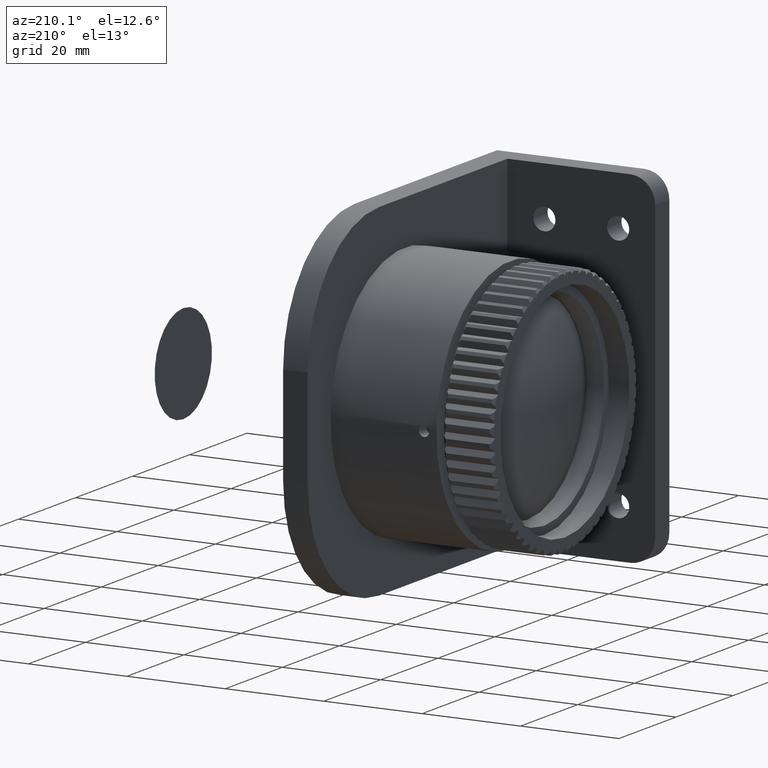
[diagram: clean part render]
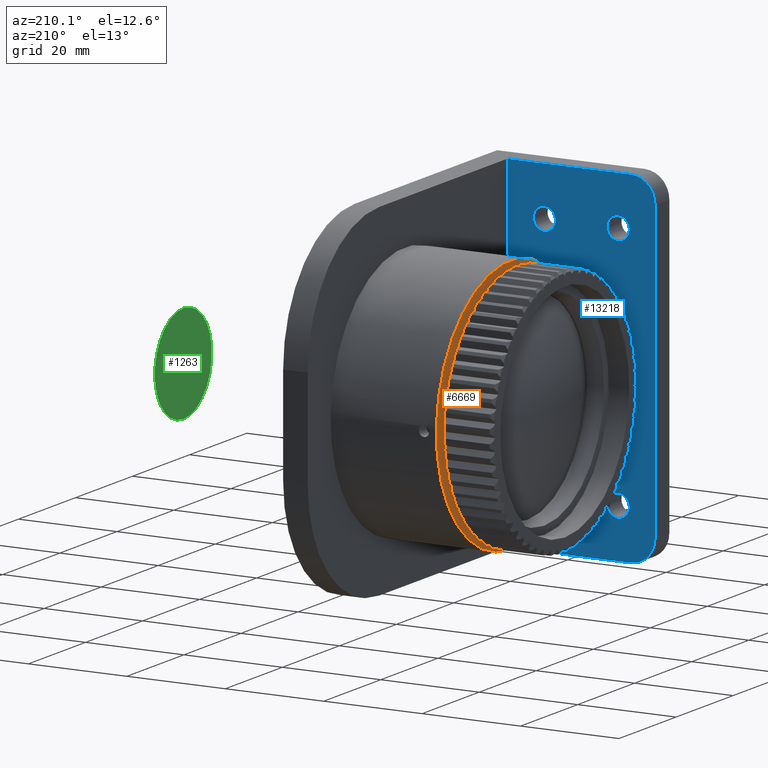
[diagram: same view with three faces highlighted in distinct colors, each labeled with its STEP entity id]
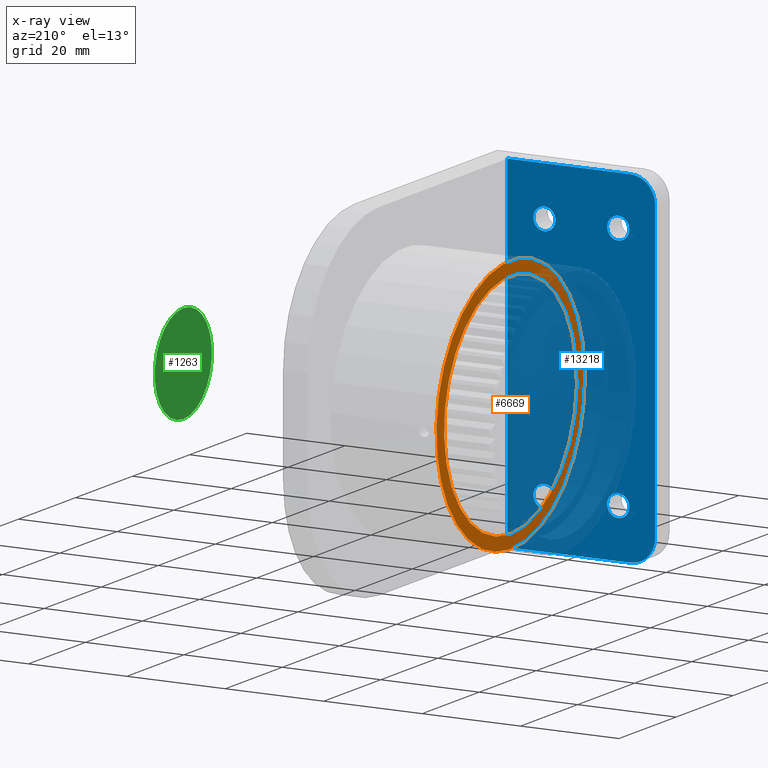
[diagram: x-ray of the same camera — body ghosted, the three highlighted faces saturated]
A machine part, auxiliary view with three faces highlighted in distinct colors.
The next image is the same camera in x-ray (body ghosted, the three faces saturated) — at least one of them is partly hidden behind the body in this view.
Their STEP definitions:

[orange] entity #6669 — the highlighted planar face has unit normal (-1, 0, 0).
#299 = CARTESIAN_POINT ( 'NONE',  ( 8.410000000000007248, 0.000000000000000000, 0.000000000000000000 ) ) ;
#1203 = DIRECTION ( 'NONE',  ( 0.000000000000000000, 0.000000000000000000, 1.000000000000000000 ) ) ;
#2324 = DIRECTION ( 'NONE',  ( -1.000000000000000000, 0.000000000000000000, 0.000000000000000000 ) ) ;
#2397 = PLANE ( 'NONE',  #11532 ) ;
#2611 = CARTESIAN_POINT ( 'NONE',  ( 8.410000000000007248, 0.000000000000000000, -25.99999999999999645 ) ) ;
#3269 = DIRECTION ( 'NONE',  ( 0.000000000000000000, 0.000000000000000000, -1.000000000000000000 ) ) ;
#3358 = DIRECTION ( 'NONE',  ( 0.000000000000000000, 0.000000000000000000, -1.000000000000000000 ) ) ;
#3464 = FACE_BOUND ( 'NONE', #10016, .T. ) ;
#3566 = CIRCLE ( 'NONE', #4692, 25.99999999999999645 ) ;
#3826 = AXIS2_PLACEMENT_3D ( 'NONE', #4564, #4491, #3358 ) ;
#4491 = DIRECTION ( 'NONE',  ( 1.000000000000000000, -0.000000000000000000, -0.000000000000000000 ) ) ;
#4564 = CARTESIAN_POINT ( 'NONE',  ( 8.410000000000007248, 0.000000000000000000, 0.000000000000000000 ) ) ;
#4692 = AXIS2_PLACEMENT_3D ( 'NONE', #299, #12923, #3269 ) ;
#6061 = CARTESIAN_POINT ( 'NONE',  ( 8.410000000000007248, 0.000000000000000000, -23.30000000000000071 ) ) ;
#6669 = ADVANCED_FACE ( 'NONE', ( #8686, #3464 ), #2397, .T. ) ;
#7063 = ORIENTED_EDGE ( 'NONE', *, *, #11755, .T. ) ;
#7836 = VERTEX_POINT ( 'NONE', #2611 ) ;
#8110 = VERTEX_POINT ( 'NONE', #6061 ) ;
#8686 = FACE_OUTER_BOUND ( 'NONE', #10358, .T. ) ;
#9206 = EDGE_CURVE ( 'NONE', #7836, #7836, #3566, .T. ) ;
#9658 = ORIENTED_EDGE ( 'NONE', *, *, #9206, .F. ) ;
#10016 = EDGE_LOOP ( 'NONE', ( #7063 ) ) ;
#10358 = EDGE_LOOP ( 'NONE', ( #9658 ) ) ;
#11532 = AXIS2_PLACEMENT_3D ( 'NONE', #12906, #2324, #1203 ) ;
#11755 = EDGE_CURVE ( 'NONE', #8110, #8110, #12819, .T. ) ;
#12819 = CIRCLE ( 'NONE', #3826, 23.30000000000000071 ) ;
#12906 = CARTESIAN_POINT ( 'NONE',  ( 8.410000000000007248, 25.99999999999999645, 0.000000000000000000 ) ) ;
#12923 = DIRECTION ( 'NONE',  ( 1.000000000000000000, -0.000000000000000000, -0.000000000000000000 ) ) ;

[blue] entity #13218 — the highlighted planar face has unit normal (0, -1, 0).
#180 = DIRECTION ( 'NONE',  ( 0.000000000000000000, 0.000000000000000000, 1.000000000000000000 ) ) ;
#209 = CARTESIAN_POINT ( 'NONE',  ( 7.410000000000009024, -36.00000000000000711, 27.25000000000000355 ) ) ;
#301 = DIRECTION ( 'NONE',  ( 0.000000000000000000, 0.000000000000000000, 1.000000000000000000 ) ) ;
#372 = ORIENTED_EDGE ( 'NONE', *, *, #9171, .T. ) ;
#447 = CARTESIAN_POINT ( 'NONE',  ( 29.91000000000001791, -35.99999999999999289, 35.00000000000000000 ) ) ;
#452 = CIRCLE ( 'NONE', #8568, 2.250000000000001776 ) ;
#742 = EDGE_CURVE ( 'NONE', #10667, #5681, #13635, .T. ) ;
#976 = FACE_BOUND ( 'NONE', #7768, .T. ) ;
#1240 = DIRECTION ( 'NONE',  ( 1.000000000000000000, -0.000000000000000000, 0.000000000000000000 ) ) ;
#1305 = CARTESIAN_POINT ( 'NONE',  ( 29.91000000000001791, -36.00000000000000000, 35.00000000000000000 ) ) ;
#1877 = DIRECTION ( 'NONE',  ( 0.000000000000000000, 0.000000000000000000, 1.000000000000000000 ) ) ;
#1886 = EDGE_CURVE ( 'NONE', #12510, #7399, #2839, .T. ) ;
#2481 = CIRCLE ( 'NONE', #4285, 2.250000000000001776 ) ;
#2839 = LINE ( 'NONE', #447, #6780 ) ;
#3008 = CARTESIAN_POINT ( 'NONE',  ( 22.41000000000000725, -35.99999999999999289, -25.00000000000000000 ) ) ;
#3046 = EDGE_CURVE ( 'NONE', #4783, #5002, #8994, .T. ) ;
#3147 = DIRECTION ( 'NONE',  ( -0.000000000000000000, 1.000000000000000000, -0.000000000000000000 ) ) ;
#3162 = EDGE_CURVE ( 'NONE', #5681, #4783, #7419, .T. ) ;
#3608 = ORIENTED_EDGE ( 'NONE', *, *, #6851, .F. ) ;
#3736 = VERTEX_POINT ( 'NONE', #12202 ) ;
#4048 = AXIS2_PLACEMENT_3D ( 'NONE', #8416, #9682, #6372 ) ;
#4285 = AXIS2_PLACEMENT_3D ( 'NONE', #9286, #7372, #1877 ) ;
#4291 = AXIS2_PLACEMENT_3D ( 'NONE', #7853, #3147, #301 ) ;
#4630 = LINE ( 'NONE', #11962, #11695 ) ;
#4783 = VERTEX_POINT ( 'NONE', #4793 ) ;
#4793 = CARTESIAN_POINT ( 'NONE',  ( -0.08999999999999069855, -36.00000000000000711, -30.00000000000000000 ) ) ;
#4937 = CARTESIAN_POINT ( 'NONE',  ( 22.41000000000000725, -35.99999999999999289, 27.25000000000000355 ) ) ;
#5002 = VERTEX_POINT ( 'NONE', #12598 ) ;
#5073 = DIRECTION ( 'NONE',  ( 1.734723475976808080E-16, -1.000000000000000000, 0.000000000000000000 ) ) ;
#5681 = VERTEX_POINT ( 'NONE', #11502 ) ;
#5808 = ORIENTED_EDGE ( 'NONE', *, *, #10248, .F. ) ;
#6372 = DIRECTION ( 'NONE',  ( -1.000000000000000000, 0.000000000000000000, 0.000000000000000000 ) ) ;
#6423 = CARTESIAN_POINT ( 'NONE',  ( 4.910000000000009912, -36.00000000000000711, 35.00000000000000000 ) ) ;
#6450 = ORIENTED_EDGE ( 'NONE', *, *, #742, .F. ) ;
#6470 = FACE_BOUND ( 'NONE', #8790, .T. ) ;
#6519 = DIRECTION ( 'NONE',  ( 1.000000000000000000, 0.000000000000000000, 0.000000000000000000 ) ) ;
#6570 = LINE ( 'NONE', #11099, #13906 ) ;
#6599 = CARTESIAN_POINT ( 'NONE',  ( 7.410000000000009024, -36.00000000000000711, -25.00000000000000000 ) ) ;
#6665 = EDGE_LOOP ( 'NONE', ( #3608 ) ) ;
#6780 = VECTOR ( 'NONE', #8138, 1000.000000000000000 ) ;
#6851 = EDGE_CURVE ( 'NONE', #7479, #7479, #7767, .T. ) ;
#7224 = EDGE_LOOP ( 'NONE', ( #7364, #13498, #6450, #372, #11887, #10734 ) ) ;
#7322 = DIRECTION ( 'NONE',  ( 2.312964634635742464E-16, -1.000000000000000000, 0.000000000000000000 ) ) ;
#7364 = ORIENTED_EDGE ( 'NONE', *, *, #3046, .F. ) ;
#7372 = DIRECTION ( 'NONE',  ( -0.000000000000000000, 1.000000000000000000, -0.000000000000000000 ) ) ;
#7399 = VERTEX_POINT ( 'NONE', #13143 ) ;
#7419 = LINE ( 'NONE', #9474, #12529 ) ;
#7460 = DIRECTION ( 'NONE',  ( 1.000000000000000000, 2.312964634635742464E-16, 0.000000000000000000 ) ) ;
#7479 = VERTEX_POINT ( 'NONE', #11785 ) ;
#7767 = CIRCLE ( 'NONE', #12710, 2.250000000000001776 ) ;
#7768 = EDGE_LOOP ( 'NONE', ( #11629 ) ) ;
#7853 = CARTESIAN_POINT ( 'NONE',  ( 7.410000000000009024, -36.00000000000000711, 25.00000000000000000 ) ) ;
#7979 = VERTEX_POINT ( 'NONE', #209 ) ;
#8138 = DIRECTION ( 'NONE',  ( -0.000000000000000000, -0.000000000000000000, -1.000000000000000000 ) ) ;
#8416 = CARTESIAN_POINT ( 'NONE',  ( 4.910000000000009024, -36.00000000000000711, -30.00000000000000000 ) ) ;
#8568 = AXIS2_PLACEMENT_3D ( 'NONE', #3008, #13789, #9502 ) ;
#8650 = CARTESIAN_POINT ( 'NONE',  ( 4.910000000000009024, -36.00000000000000711, 30.00000000000000711 ) ) ;
#8790 = EDGE_LOOP ( 'NONE', ( #9145 ) ) ;
#8994 = CIRCLE ( 'NONE', #4048, 5.000000000000000000 ) ;
#9145 = ORIENTED_EDGE ( 'NONE', *, *, #10408, .F. ) ;
#9171 = EDGE_CURVE ( 'NONE', #10667, #12510, #6570, .T. ) ;
#9251 = AXIS2_PLACEMENT_3D ( 'NONE', #13942, #7322, #7460 ) ;
#9286 = CARTESIAN_POINT ( 'NONE',  ( 22.41000000000000725, -35.99999999999999289, 25.00000000000000000 ) ) ;
#9438 = PLANE ( 'NONE',  #9251 ) ;
#9474 = CARTESIAN_POINT ( 'NONE',  ( -0.08999999999998939404, -36.00000000000000000, 35.00000000000000000 ) ) ;
#9502 = DIRECTION ( 'NONE',  ( 0.000000000000000000, 0.000000000000000000, 1.000000000000000000 ) ) ;
#9594 = AXIS2_PLACEMENT_3D ( 'NONE', #8650, #5073, #6519 ) ;
#9682 = DIRECTION ( 'NONE',  ( 1.734723475976808080E-16, -1.000000000000000000, -0.000000000000000000 ) ) ;
#9820 = EDGE_LOOP ( 'NONE', ( #5808 ) ) ;
#9925 = CIRCLE ( 'NONE', #4291, 2.250000000000001776 ) ;
#10248 = EDGE_CURVE ( 'NONE', #3736, #3736, #452, .T. ) ;
#10408 = EDGE_CURVE ( 'NONE', #7979, #7979, #9925, .T. ) ;
#10507 = VERTEX_POINT ( 'NONE', #4937 ) ;
#10667 = VERTEX_POINT ( 'NONE', #6423 ) ;
#10710 = FACE_BOUND ( 'NONE', #9820, .T. ) ;
#10734 = ORIENTED_EDGE ( 'NONE', *, *, #11771, .F. ) ;
#11099 = CARTESIAN_POINT ( 'NONE',  ( 0.000000000000000000, -36.00000000000000711, 35.00000000000000000 ) ) ;
#11502 = CARTESIAN_POINT ( 'NONE',  ( -0.08999999999999000466, -36.00000000000000711, 30.00000000000000711 ) ) ;
#11629 = ORIENTED_EDGE ( 'NONE', *, *, #12276, .F. ) ;
#11695 = VECTOR ( 'NONE', #1240, 1000.000000000000000 ) ;
#11771 = EDGE_CURVE ( 'NONE', #5002, #7399, #4630, .T. ) ;
#11785 = CARTESIAN_POINT ( 'NONE',  ( 7.410000000000009024, -36.00000000000000711, -22.75000000000000000 ) ) ;
#11887 = ORIENTED_EDGE ( 'NONE', *, *, #1886, .T. ) ;
#11962 = CARTESIAN_POINT ( 'NONE',  ( 0.000000000000000000, -36.00000000000000711, -35.00000000000000000 ) ) ;
#12072 = DIRECTION ( 'NONE',  ( 1.000000000000000000, -0.000000000000000000, 0.000000000000000000 ) ) ;
#12097 = DIRECTION ( 'NONE',  ( -0.000000000000000000, 1.000000000000000000, -0.000000000000000000 ) ) ;
#12202 = CARTESIAN_POINT ( 'NONE',  ( 22.41000000000000725, -35.99999999999999289, -22.75000000000000000 ) ) ;
#12276 = EDGE_CURVE ( 'NONE', #10507, #10507, #2481, .T. ) ;
#12510 = VERTEX_POINT ( 'NONE', #1305 ) ;
#12529 = VECTOR ( 'NONE', #13761, 1000.000000000000000 ) ;
#12598 = CARTESIAN_POINT ( 'NONE',  ( 4.910000000000009912, -36.00000000000000711, -35.00000000000000000 ) ) ;
#12710 = AXIS2_PLACEMENT_3D ( 'NONE', #6599, #12097, #180 ) ;
#13143 = CARTESIAN_POINT ( 'NONE',  ( 29.91000000000001791, -36.00000000000000000, -35.00000000000000000 ) ) ;
#13218 = ADVANCED_FACE ( 'NONE', ( #13802, #6470, #13868, #976, #10710 ), #9438, .F. ) ;
#13498 = ORIENTED_EDGE ( 'NONE', *, *, #3162, .F. ) ;
#13635 = CIRCLE ( 'NONE', #9594, 5.000000000000000000 ) ;
#13761 = DIRECTION ( 'NONE',  ( 0.000000000000000000, -0.000000000000000000, -1.000000000000000000 ) ) ;
#13789 = DIRECTION ( 'NONE',  ( -0.000000000000000000, 1.000000000000000000, -0.000000000000000000 ) ) ;
#13802 = FACE_OUTER_BOUND ( 'NONE', #7224, .T. ) ;
#13868 = FACE_BOUND ( 'NONE', #6665, .T. ) ;
#13906 = VECTOR ( 'NONE', #12072, 1000.000000000000000 ) ;
#13942 = CARTESIAN_POINT ( 'NONE',  ( 29.91000000000001791, -35.99999999999999289, 35.00000000000000000 ) ) ;

[green] entity #1263 — the highlighted planar face has unit normal (-1, 0, 0).
#665 = DIRECTION ( 'NONE',  ( 0.000000000000000000, 0.000000000000000000, -1.000000000000000000 ) ) ;
#1263 = ADVANCED_FACE ( 'NONE', ( #1834 ), #6145, .T. ) ;
#1834 = FACE_OUTER_BOUND ( 'NONE', #6613, .T. ) ;
#4016 = DIRECTION ( 'NONE',  ( 0.000000000000000000, 0.000000000000000000, 1.000000000000000000 ) ) ;
#4993 = CIRCLE ( 'NONE', #6785, 10.01887999999999934 ) ;
#5083 = CARTESIAN_POINT ( 'NONE',  ( 74.90000000000000568, 10.01887999999999934, 0.000000000000000000 ) ) ;
#6145 = PLANE ( 'NONE',  #9661 ) ;
#6174 = DIRECTION ( 'NONE',  ( -1.000000000000000000, 0.000000000000000000, 0.000000000000000000 ) ) ;
#6613 = EDGE_LOOP ( 'NONE', ( #12377 ) ) ;
#6785 = AXIS2_PLACEMENT_3D ( 'NONE', #10542, #6174, #665 ) ;
#9306 = VERTEX_POINT ( 'NONE', #13150 ) ;
#9382 = DIRECTION ( 'NONE',  ( -1.000000000000000000, 0.000000000000000000, 0.000000000000000000 ) ) ;
#9661 = AXIS2_PLACEMENT_3D ( 'NONE', #5083, #9382, #4016 ) ;
#10542 = CARTESIAN_POINT ( 'NONE',  ( 74.90000000000000568, 0.000000000000000000, 0.000000000000000000 ) ) ;
#12377 = ORIENTED_EDGE ( 'NONE', *, *, #13576, .T. ) ;
#13150 = CARTESIAN_POINT ( 'NONE',  ( 74.90000000000000568, 0.000000000000000000, -10.01887999999999934 ) ) ;
#13576 = EDGE_CURVE ( 'NONE', #9306, #9306, #4993, .T. ) ;